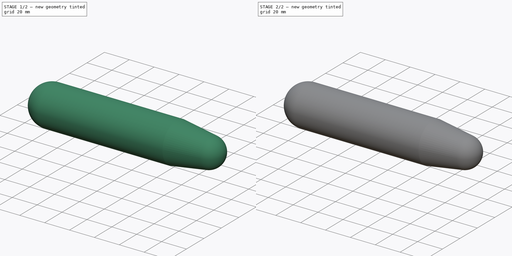
[diagram: build sequence overview — one tinted view per stage of 2, left to right]
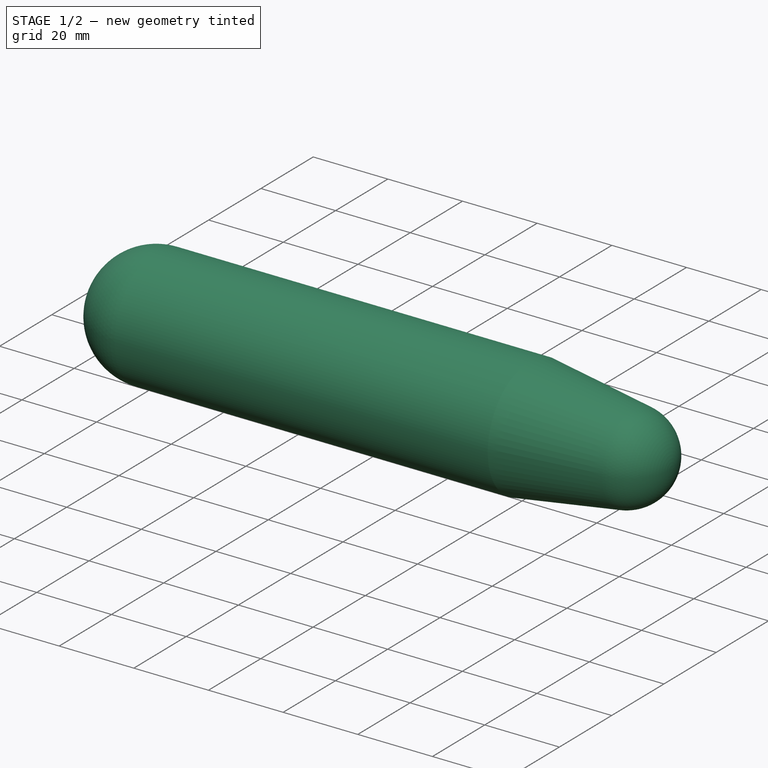
[diagram: stage 1 of 2 — iso view after this stage's code; geometry added in this stage tinted green]
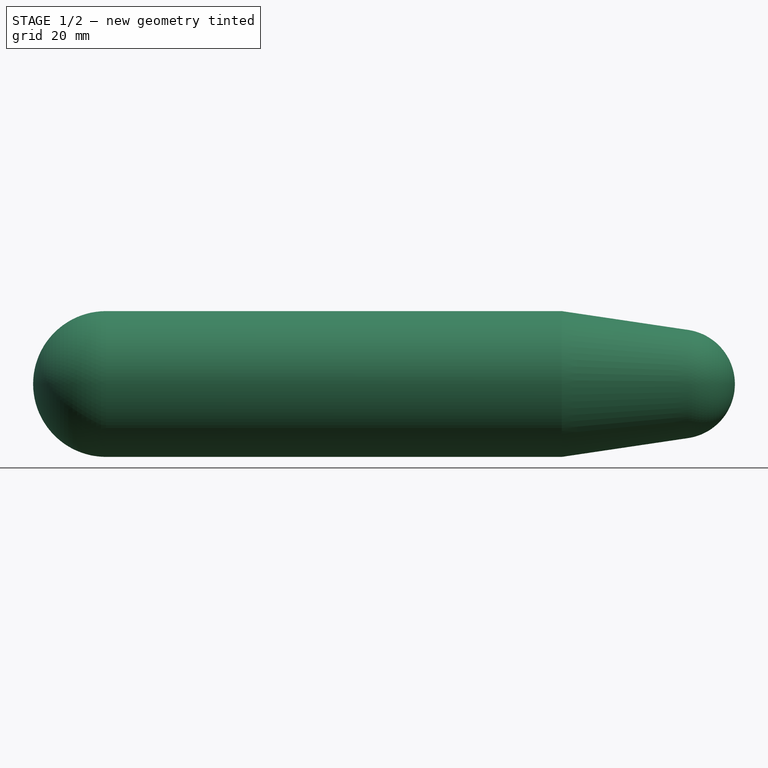
[diagram: stage 1 of 2 — front view after this stage's code; geometry added in this stage tinted green]
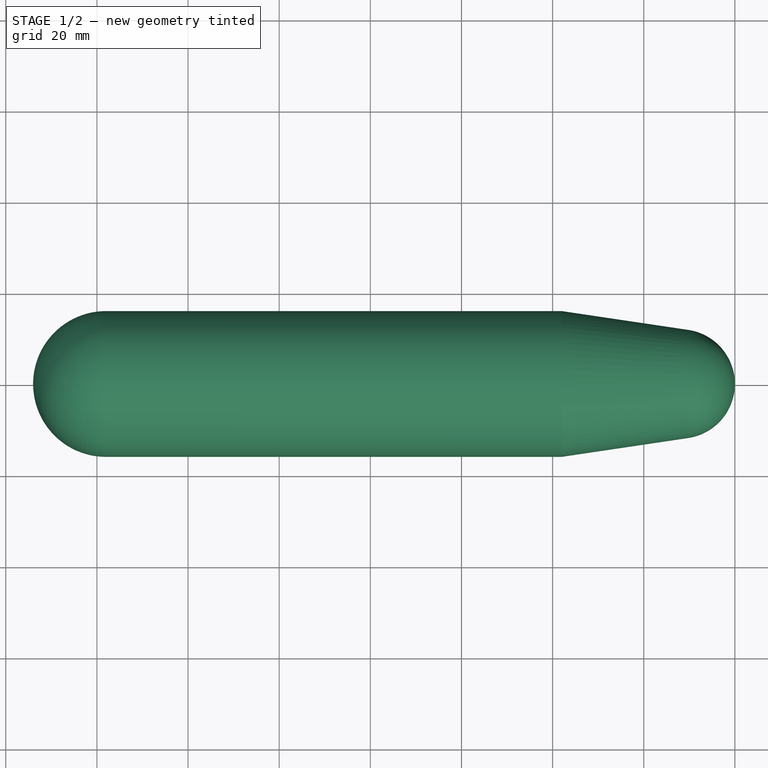
[diagram: stage 1 of 2 — top view after this stage's code; geometry added in this stage tinted green]
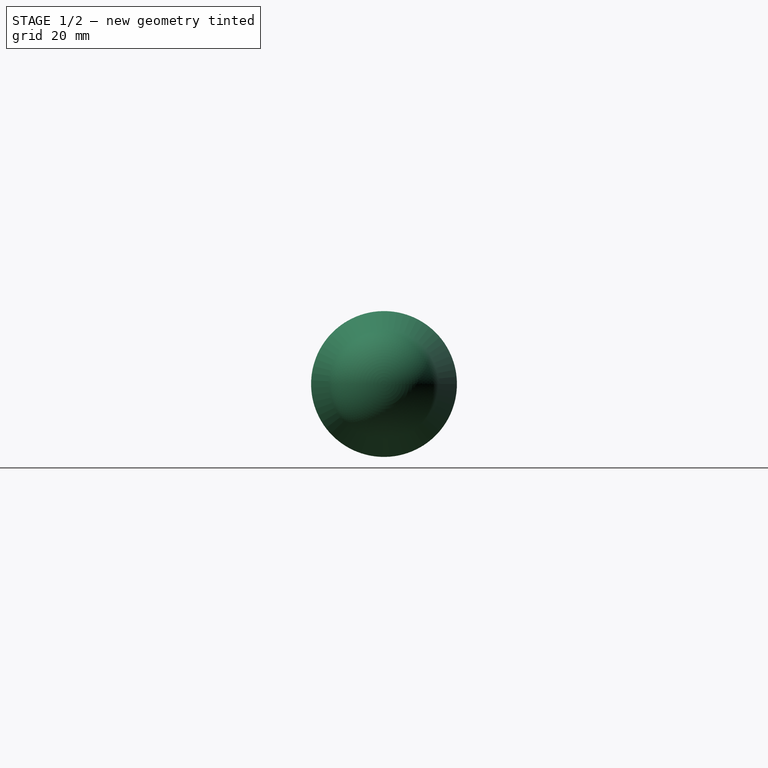
[diagram: stage 1 of 2 — right view after this stage's code; geometry added in this stage tinted green]
FCSTD DOCUMENT  (FreeCAD 0.17R13541 (Git))
Label: submarine
License: All rights reserved
LicenseURL: http://en.wikipedia.org/wiki/All_rights_reserved
objects: Sketcher::SketchObject×3, PartDesign::Revolution×3, PartDesign::Plane×1, Spreadsheet::Sheet×1, PartDesign::LinearPattern×1, PartDesign::Body×1
note: 12 computed .brp shape members not serialized (recipe doc carries the construction recipe); baked Part::Feature solids carry a one-line shape summary decoded from their .brp

FEATURE [Sketcher::SketchObject] Sketch
  MapMode = 5
  Support = -> [XY_Plane]
  expr: Constraints[8] = Spreadsheet.B2
  expr: Constraints[9] = Spreadsheet.B3
  expr: Constraints[37] = Spreadsheet.B5
  expr: Constraints[7] = Spreadsheet.B1
  expr: Constraints[36] = Spreadsheet.B4
  sketch-geometry (14):
    g0: ArcOfCircle CenterX=-12 CenterY=0 CenterZ=0 NormalX=0 NormalY=0 NormalZ=1 AngleXU=0 Radius=12 StartAngle=0 EndAngle=1.42311
    g1: LineSegment StartX=-10.2342 StartY=11.8694 StartZ=0 EndX=-38 EndY=16 EndZ=0
    g2: LineSegment StartX=-38 StartY=16 StartZ=0 EndX=-138 EndY=16 EndZ=0
    g3: ArcOfCircle CenterX=-138 CenterY=0 CenterZ=0 NormalX=0 NormalY=0 NormalZ=1 AngleXU=0 Radius=16 StartAngle=1.5708 EndAngle=3.14159
    g4: ArcOfCircle CenterX=-138 CenterY=0 CenterZ=0 NormalX=0 NormalY=0 NormalZ=1 AngleXU=0 Radius=15 StartAngle=1.5708 EndAngle=3.14159
    g5: LineSegment StartX=-153 StartY=0 StartZ=0 EndX=-154 EndY=0 EndZ=0
    g6: LineSegment StartX=-138 StartY=15 StartZ=0 EndX=-38 EndY=15 EndZ=0
    g7: LineSegment StartX=-38 StartY=15 StartZ=0 EndX=-10.3818 EndY=10.8803 EndZ=0
    g8: ArcOfCircle CenterX=-12 CenterY=0 CenterZ=0 NormalX=0 NormalY=0 NormalZ=1 AngleXU=0 Radius=11 StartAngle=0 EndAngle=1.42315
    g9: LineSegment StartX=-1 StartY=0 StartZ=0 EndX=0 EndY=0 EndZ=0
    g10: LineSegment [constr] StartX=-10.2342 StartY=11.8694 StartZ=0 EndX=-10.3818 EndY=10.8803 EndZ=0
    g11: LineSegment [constr] StartX=-42.6699 StartY=15.6837 StartZ=0 EndX=-42.5227 EndY=16.6728 EndZ=0
    g12: LineSegment [constr] StartX=-38 StartY=16 StartZ=0 EndX=-38 EndY=15 EndZ=0
    g13: LineSegment [constr] StartX=-138 StartY=16 StartZ=0 EndX=-138 EndY=15 EndZ=0
  constraints (40):
    c: PointOnObject(g0,g-1)
    c: PointOnObject(g0,g-1)
    c: Tangent(g0,g1) = -1.5708
    c: Coincident(g1,g2)
    c: PointOnObject(g3,g-1)
    c: PointOnObject(g3,g-1)
    c: Tangent(g3,g2) = -1.5708
    c: Distance(g3,g0) = 154
    c: Radius(g0) = 12
    c: Radius(g3) = 16
    c: Coincident(g4,g3)
    c: PointOnObject(g4,g-1)
    c: Coincident(g5,g4)
    c: Coincident(g5,g3)
    c: Coincident(g6,g4)
    c: Horizontal(g6)
    c: Coincident(g8,g0)
    c: Coincident(g8,g7)
    c: Coincident(g9,g-1)
    c: Horizontal(g9)
    c: Coincident(g8,g9)
    c: Coincident(g10,g0)
    c: PointOnObject(g11,g1)
    c: Perpendicular(g1,g11)
    c: Equal(g9,g10)
    c: Equal(g10,g11)
    c: Coincident(g12,g1)
    c: Coincident(g12,g6)
    c: Vertical(g12)
    c: Equal(g11,g12)
    c: Coincident(g13,g2)
    c: Coincident(g13,g4)
    c: Vertical(g13)
    c: Equal(g12,g13)
    c: Equal(g13,g5)
    c: Coincident(g7,g10)
    c: Distance(g5) = 1
    c: DistanceX(g4,g6) = 100
    c: Perpendicular(g7,g10)
    c: Coincident(g7,g6)
FEATURE [PartDesign::Plane] DatumPlane
  MapMode = 2
  Support = -> [Sketch]
FEATURE [PartDesign::Revolution] Revolution  label="coque_pression"
  Angle = 360
  Axis = (1,0,0)
  Base = (0,0,0)
  Profile = -> Sketch
  ReferenceAxis = -> Sketch [H_Axis]
FEATURE [Spreadsheet::Sheet] Spreadsheet
  cells = A1=longeur_bateau; B1=154; D1=anneau_longeur; E1=2; A2=diametre_petit; B2=12; D2=anneau_largeur; E2=1; A3=diametre_grand; B3=16; D3=ecart; E3=3.0499999999999998; A4=epaisseur; B4=1; A5=longeur_droite; B5=100
FEATURE [Sketcher::SketchObject] Sketch001
  ExternalGeometry = -> [Revolution]
  MapMode = 5
  Support = -> [DatumPlane]
  expr: Constraints[6] = Spreadsheet.E1
  expr: Constraints[5] = Spreadsheet.E2
  sketch-geometry (4):
    g0: LineSegment StartX=-138 StartY=-15 StartZ=0 EndX=-137 EndY=-15 EndZ=0
    g1: LineSegment StartX=-137 StartY=-15 StartZ=0 EndX=-137 EndY=-13 EndZ=0
    g2: LineSegment StartX=-137 StartY=-13 StartZ=0 EndX=-138 EndY=-13 EndZ=0
    g3: LineSegment StartX=-138 StartY=-13 StartZ=0 EndX=-138 EndY=-15 EndZ=0
  constraints (7):
    c: Coincident(g0,g1)
    c: Coincident(g1,g2)
    c: Coincident(g2,g3)
    c: Parallel(g1,g3)
    c: Perpendicular(g1,g2)
    c: Distance(g2) = 1
    c: Distance(g1) = 2
FEATURE [PartDesign::Revolution] Revolution001  label="anneau_1"
  Angle = 360
  Axis = (1,0,0)
  Base = (0,0,0)
  BaseFeature = -> Revolution
  Profile = -> Sketch001
  ReferenceAxis = -> Sketch001 [H_Axis]
  Reversed = true
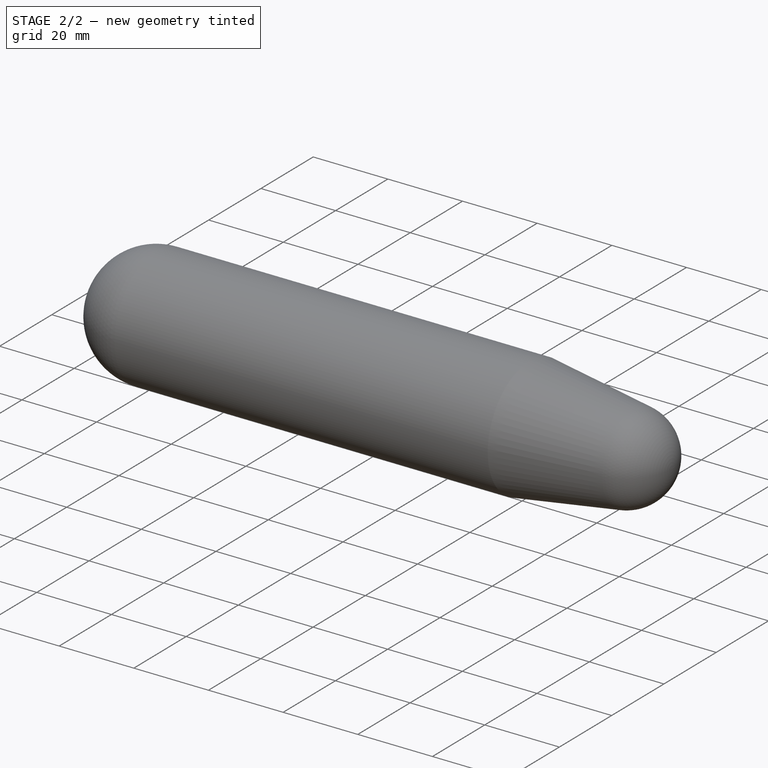
[diagram: stage 2 of 2 — iso view after this stage's code; geometry added in this stage tinted green]
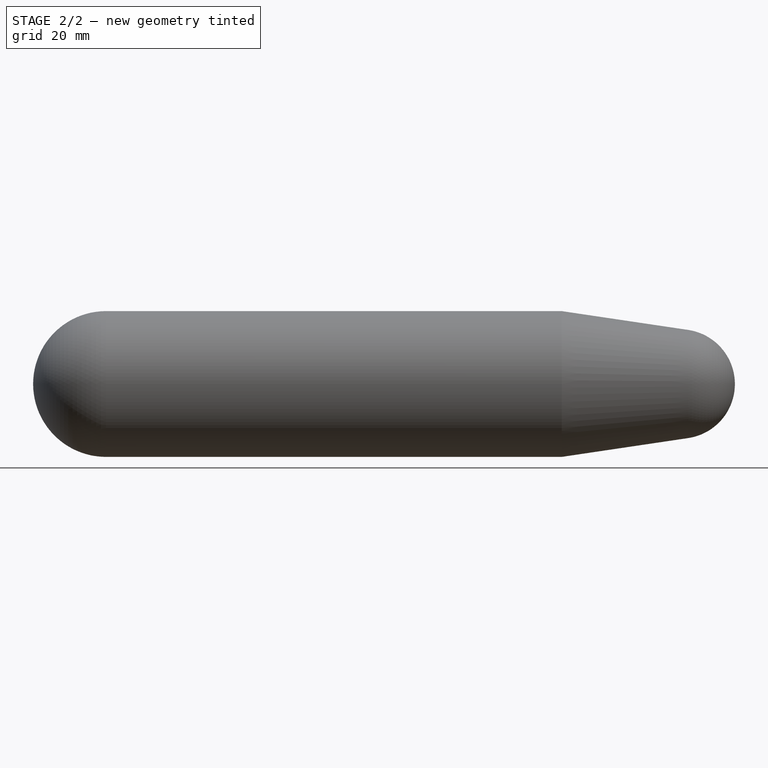
[diagram: stage 2 of 2 — front view after this stage's code; geometry added in this stage tinted green]
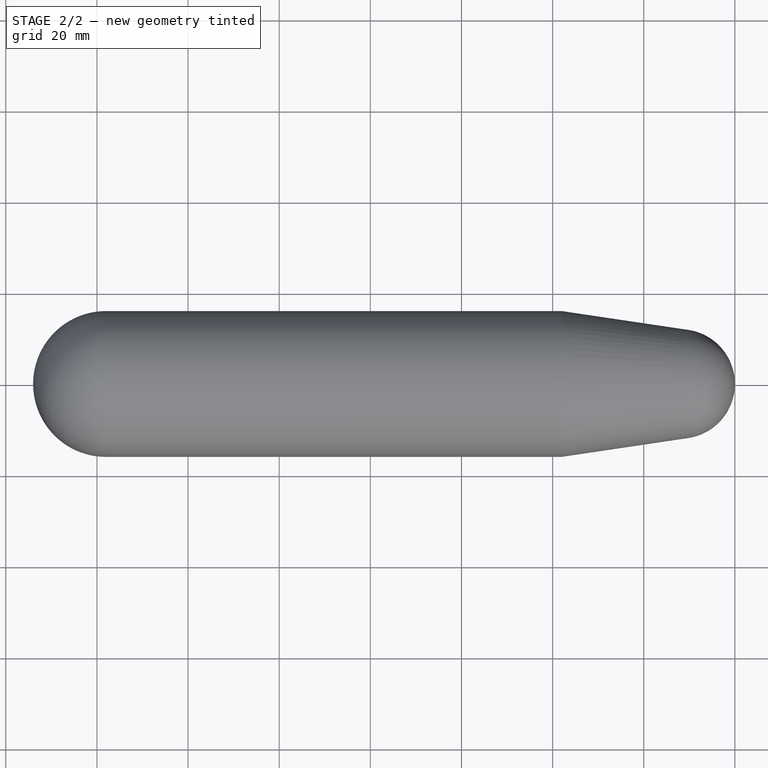
[diagram: stage 2 of 2 — top view after this stage's code; geometry added in this stage tinted green]
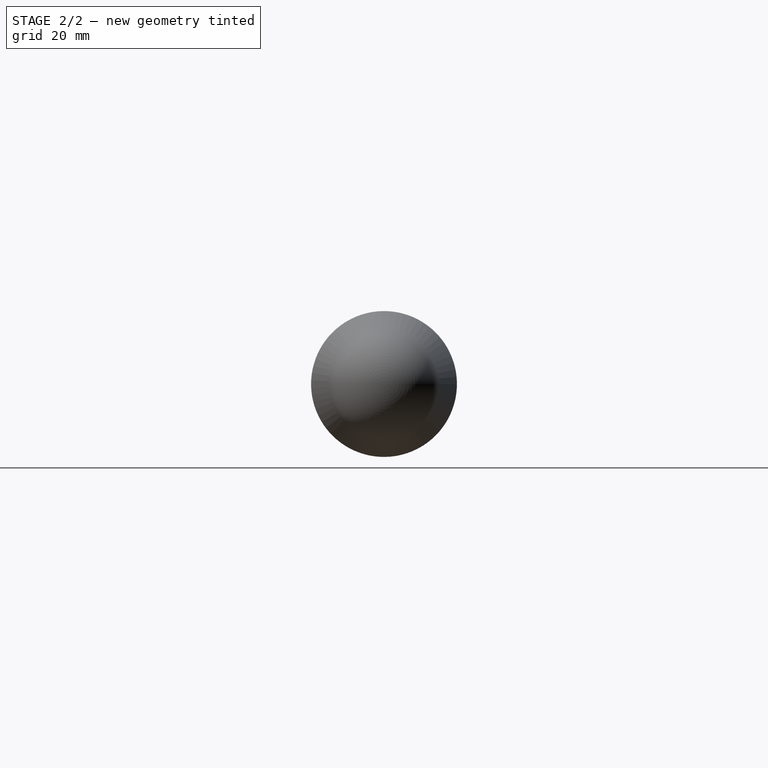
[diagram: stage 2 of 2 — right view after this stage's code; geometry added in this stage tinted green]
FEATURE [PartDesign::LinearPattern] LinearPattern
  BaseFeature = -> Revolution001
  Direction = -> Sketch001 [H_Axis]
  Length = 96
  Occurrences = 5
  Originals = -> [Revolution001]
  expr: Length = Spreadsheet.B5 - 4
FEATURE [Sketcher::SketchObject] Sketch002
  ExternalGeometry = -> [LinearPattern]
  MapMode = 5
  Support = -> [DatumPlane]
  expr: Constraints[8] = Spreadsheet.E1
  expr: Constraints[4] = Spreadsheet.E2
  sketch-geometry (4):
    g0: LineSegment StartX=-24.1532 StartY=-12.9345 StartZ=0 EndX=-25.1423 EndY=-13.0821 EndZ=0
    g1: LineSegment StartX=-25.1423 StartY=-13.0821 StartZ=0 EndX=-25.4373 EndY=-11.104 EndZ=0
    g2: LineSegment StartX=-25.4373 StartY=-11.104 StartZ=0 EndX=-24.4483 EndY=-10.9564 EndZ=0
    g3: LineSegment StartX=-24.4483 StartY=-10.9564 StartZ=0 EndX=-24.1532 EndY=-12.9345 EndZ=0
  constraints (9):
    c: Coincident(g0,g1)
    c: Coincident(g1,g2)
    c: Coincident(g2,g3)
    c: Coincident(g3,g0)
    c: Distance(g0) = 1
    c: Parallel(g2,g0)
    c: Perpendicular(g1,g2)
    c: Parallel(g3,g1)
    c: Distance(g1) = 2
FEATURE [PartDesign::Revolution] Revolution002
  Angle = 360
  Axis = (1,0,0)
  Base = (0,0,0)
  BaseFeature = -> LinearPattern
  Profile = -> Sketch002
  ReferenceAxis = -> Sketch002 [H_Axis]
  Reversed = true
FEATURE [PartDesign::Body] Body
  Group = -> [Sketch,DatumPlane,Revolution,Sketch001,Revolution001,LinearPattern,Sketch002,Revolution002]
  Origin = -> Origin
  Tip = -> Revolution002
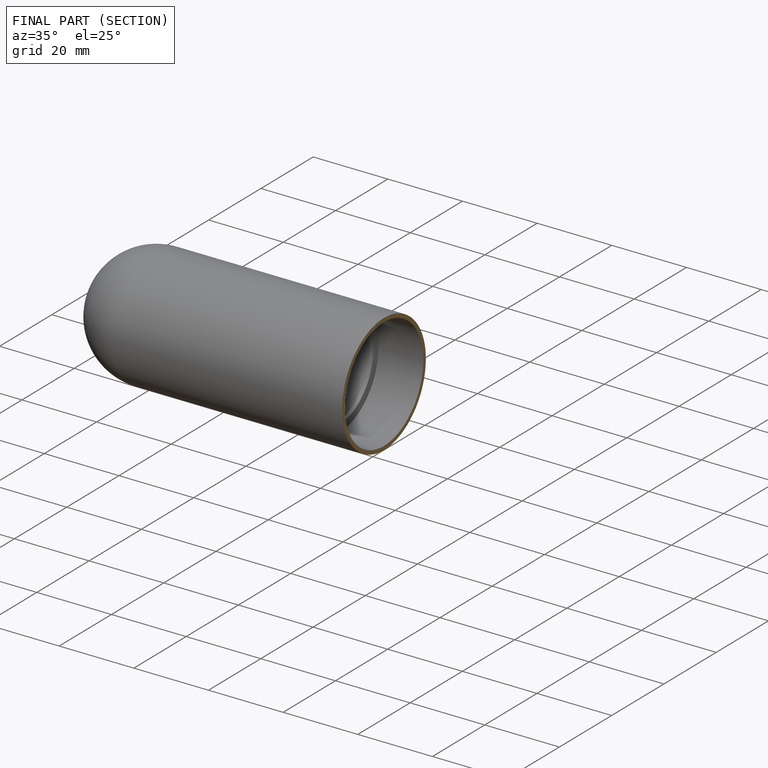
[diagram: finished part — half-section view (interior)]
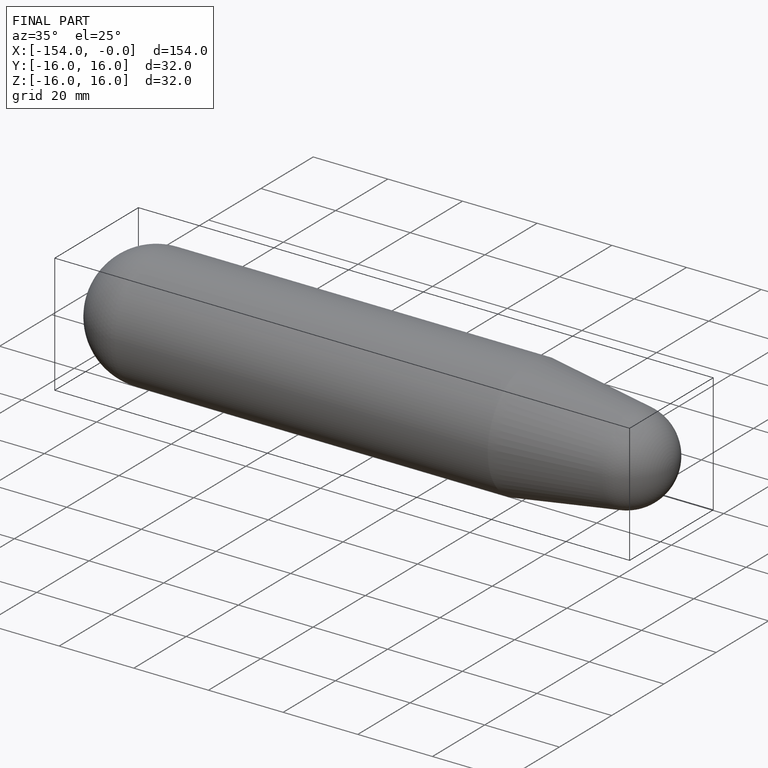
[diagram: finished part — iso view with bounding-box wireframe]
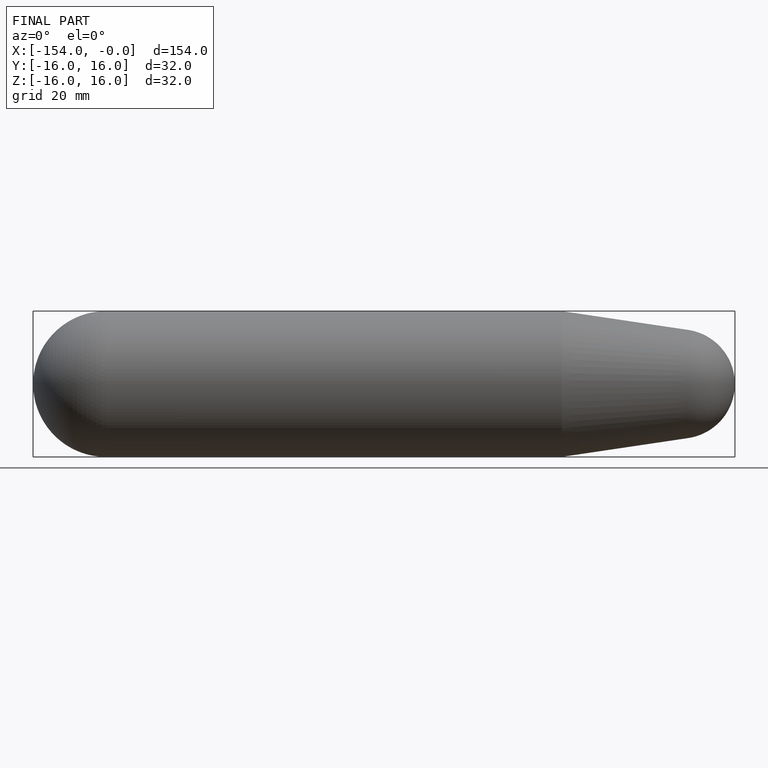
[diagram: finished part — front view with bounding-box wireframe]
